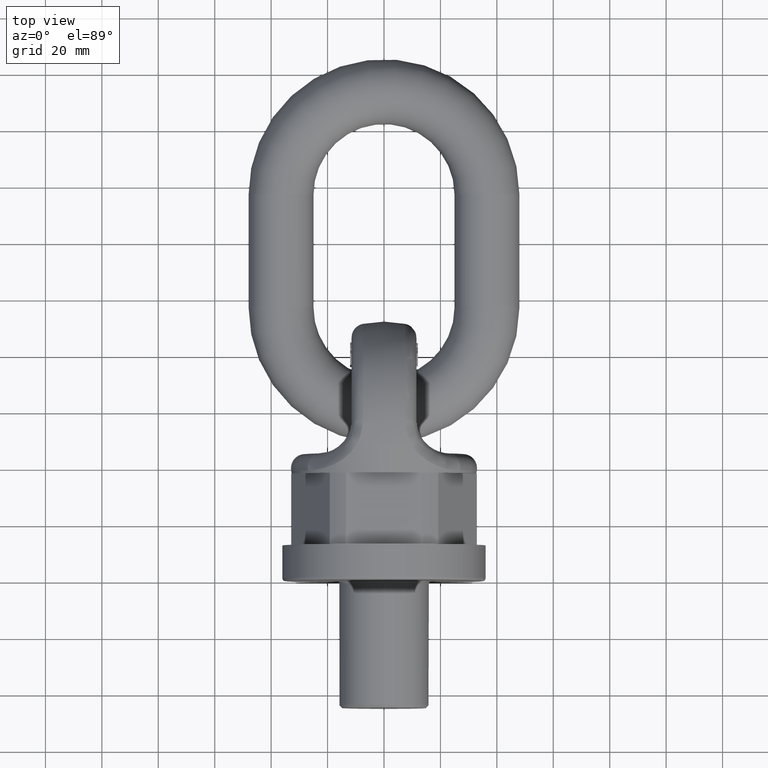
[diagram: clean part render]
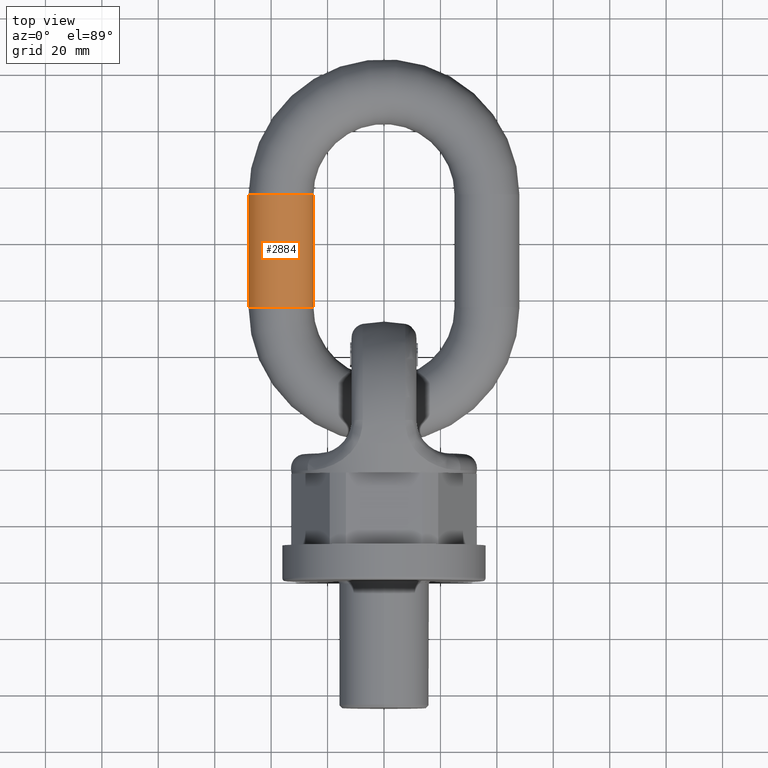
[diagram: same view with one face highlighted and labeled with its STEP entity id]
A machine part, top view. The second image highlights one B-rep face of the part: STEP entity #2884.
In plain terms, the highlighted cylindrical surface (bore or boss wall) has radius 11.5 mm, axis along (0, 1, 0).
Its self-contained STEP definition (entity closure, byte-faithful):
#2039=CYLINDRICAL_SURFACE('',#5803,11.5);
#2884=ADVANCED_FACE('',(#3057,#3058),#2039,.T.);
#3057=FACE_BOUND('',#3343,.T.);
#3058=FACE_BOUND('',#3344,.T.);
#3343=EDGE_LOOP('',(#4535));
#3344=EDGE_LOOP('',(#4536));
#4535=ORIENTED_EDGE('',*,*,#5533,.T.);
#4536=ORIENTED_EDGE('',*,*,#5534,.F.);
#4937=VERTEX_POINT('',#9738);
#4938=VERTEX_POINT('',#9740);
#5533=EDGE_CURVE('',#4937,#4937,#5599,.T.);
#5534=EDGE_CURVE('',#4938,#4938,#5600,.T.);
#5599=CIRCLE('',#5801,11.5);
#5600=CIRCLE('',#5802,11.5);
#5801=AXIS2_PLACEMENT_3D('',#9737,#6553,#6554);
#5802=AXIS2_PLACEMENT_3D('',#9739,#6555,#6556);
#5803=AXIS2_PLACEMENT_3D('',#9741,#6557,#6558);
#6553=DIRECTION('',(-1.18827878355489E-15,1.,0.));
#6554=DIRECTION('',(-1.,-1.20676415720126E-15,0.));
#6555=DIRECTION('',(-1.18827878355489E-15,1.,0.));
#6556=DIRECTION('',(-1.,0.,0.));
#6557=DIRECTION('',(0.,1.,0.));
#6558=DIRECTION('',(0.,0.,1.));
#9737=CARTESIAN_POINT('',(-36.5,97.,0.));
#9738=CARTESIAN_POINT('',(-48.,96.9999999999999,0.));
#9739=CARTESIAN_POINT('',(-36.5,137.,0.));
#9740=CARTESIAN_POINT('',(-48.,137.,0.));
#9741=CARTESIAN_POINT('',(-36.5,97.,0.));